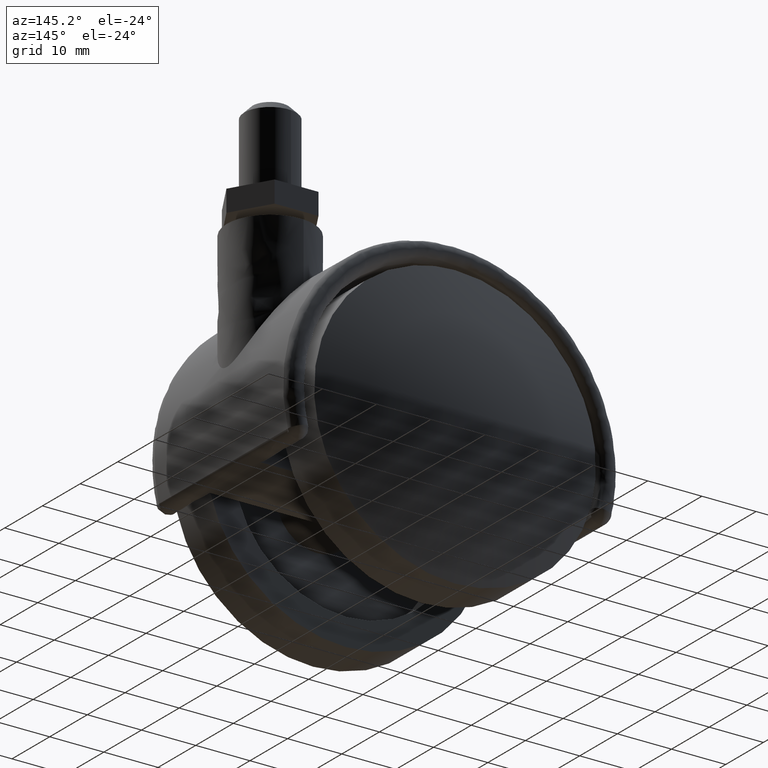
[diagram: clean part render]
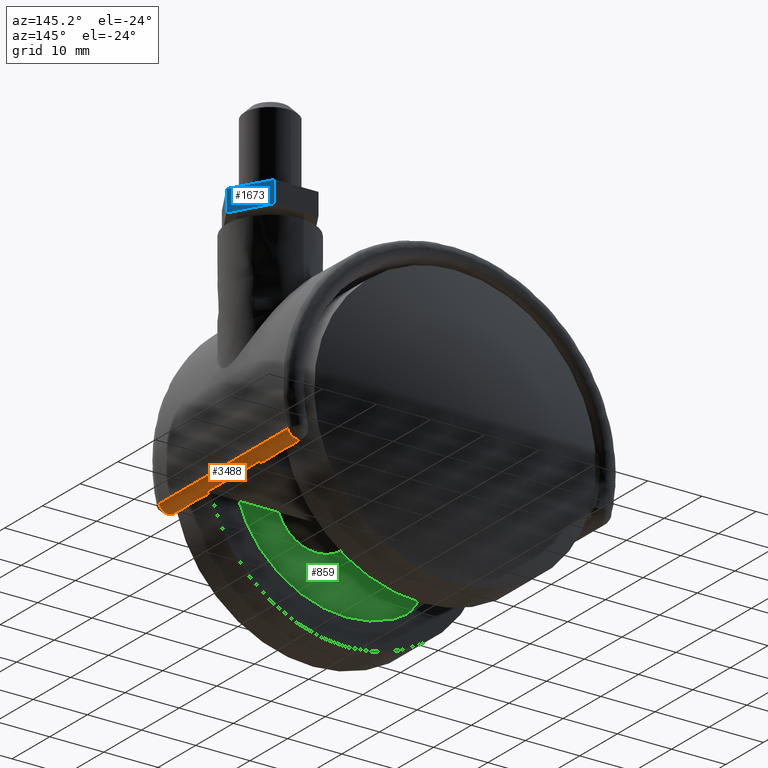
[diagram: same view with three faces highlighted in distinct colors, each labeled with its STEP entity id]
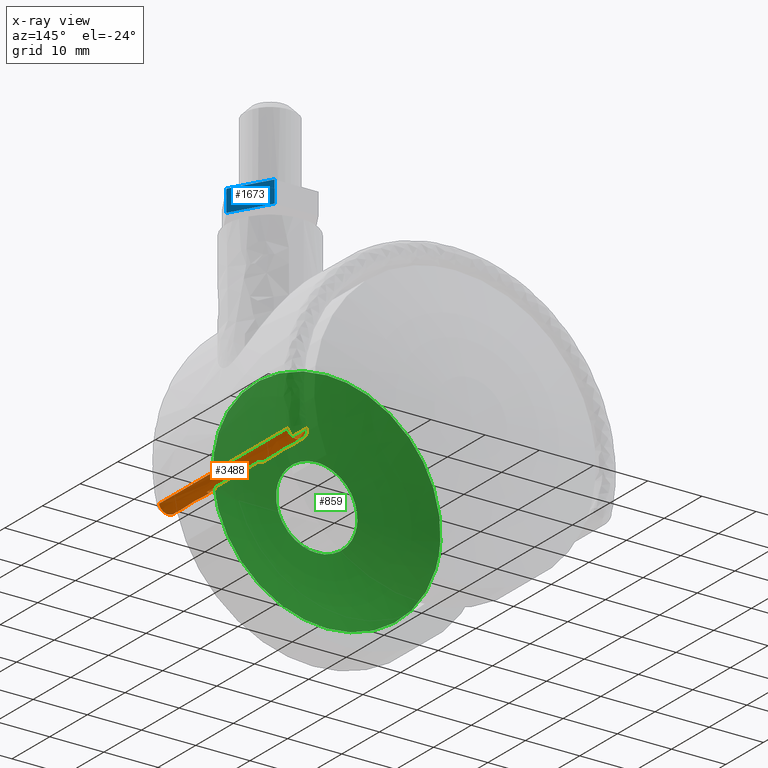
[diagram: x-ray of the same camera — body ghosted, the three highlighted faces saturated]
A machine part, auxiliary view with three faces highlighted in distinct colors.
The next image is the same camera in x-ray (body ghosted, the three faces saturated) — at least one of them is partly hidden behind the body in this view.
Their STEP definitions:

[orange] entity #3488 — the highlighted face is a freeform B-spline surface patch.
#2855=CARTESIAN_POINT('',(27.946377224964252,-6.900000000000000,-8.500000000000000));
#2856=VERTEX_POINT('',#2855);
#2881=CARTESIAN_POINT('',(27.946377224964252,6.900000000000000,-8.500000000000000));
#2882=VERTEX_POINT('',#2881);
#2888=CARTESIAN_POINT('',(27.946377224964252,6.900000000000000,-8.500000000000000));
#2889=CARTESIAN_POINT('',(27.946377224964252,-6.900000000000000,-8.500000000000000));
#2890=QUASI_UNIFORM_CURVE('',1,(#2888,#2889),.UNSPECIFIED.,.F.,.U.);
#2891=EDGE_CURVE('',#2882,#2856,#2890,.T.);
#2993=CARTESIAN_POINT('',(26.245293393879450,-17.100000000000001,-6.339130434782610));
#2994=VERTEX_POINT('',#2993);
#2995=CARTESIAN_POINT('',(29.647461056049000,-17.100000000000001,-7.160869565217389));
#2996=VERTEX_POINT('',#2995);
#2997=CARTESIAN_POINT('',(26.245293393879471,-17.100000000000001,-6.339130434782614));
#2998=CARTESIAN_POINT('',(25.834423828662086,-17.100000000000001,-8.040214265867391));
#2999=CARTESIAN_POINT('',(27.535507659746859,-17.100000000000001,-8.451083831084779));
#3000=CARTESIAN_POINT('',(29.236591490831628,-17.100000000000001,-8.861953396302171));
#3001=CARTESIAN_POINT('',(29.647461056049028,-17.100000000000001,-7.160869565217397));
#3009=(BOUNDED_CURVE()B_SPLINE_CURVE(2,(#2997,#2998,#2999,#3000,#3001),.UNSPECIFIED.,.F.,.U.)B_SPLINE_CURVE_WITH_KNOTS((3,2,3),(0.0,0.500000000000000,1.0),.UNSPECIFIED.)CURVE()GEOMETRIC_REPRESENTATION_ITEM()RATIONAL_B_SPLINE_CURVE((1.0,0.707106781186549,1.0,0.707106781186549,1.0))REPRESENTATION_ITEM(''));
#3010=EDGE_CURVE('',#2994,#2996,#3009,.T.);
#3062=CARTESIAN_POINT('',(26.245293393879450,17.100000000000001,-6.339130434782610));
#3063=VERTEX_POINT('',#3062);
#3064=CARTESIAN_POINT('',(29.647461056049000,17.100000000000001,-7.160869565217389));
#3065=VERTEX_POINT('',#3064);
#3066=CARTESIAN_POINT('',(26.245293393879471,17.100000000000001,-6.339130434782614));
#3067=CARTESIAN_POINT('',(25.834423828662086,17.100000000000001,-8.040214265867391));
#3068=CARTESIAN_POINT('',(27.535507659746859,17.100000000000001,-8.451083831084779));
#3069=CARTESIAN_POINT('',(29.236591490831628,17.100000000000001,-8.861953396302171));
#3070=CARTESIAN_POINT('',(29.647461056049028,17.100000000000001,-7.160869565217397));
#3078=(BOUNDED_CURVE()B_SPLINE_CURVE(2,(#3066,#3067,#3068,#3069,#3070),.UNSPECIFIED.,.F.,.U.)B_SPLINE_CURVE_WITH_KNOTS((3,2,3),(0.0,0.500000000000000,1.0),.UNSPECIFIED.)CURVE()GEOMETRIC_REPRESENTATION_ITEM()RATIONAL_B_SPLINE_CURVE((1.0,0.707106781186549,1.0,0.707106781186549,1.0))REPRESENTATION_ITEM(''));
#3079=EDGE_CURVE('',#3063,#3065,#3078,.T.);
#3406=CARTESIAN_POINT('',(29.647461056049000,-17.100000000000001,-7.160869565217389));
#3407=CARTESIAN_POINT('',(29.647461056049000,17.100000000000001,-7.160869565217389));
#3408=QUASI_UNIFORM_CURVE('',1,(#3406,#3407),.UNSPECIFIED.,.F.,.U.);
#3409=EDGE_CURVE('',#2996,#3065,#3408,.T.);
#3420=CARTESIAN_POINT('',(29.657633448475611,17.954999999999998,-7.116199586965414));
#3421=CARTESIAN_POINT('',(29.657633448475611,-17.976375000000001,-7.116199586965414));
#3422=CARTESIAN_POINT('',(29.271739601845361,17.955000000000009,-8.919487384565041));
#3423=CARTESIAN_POINT('',(29.271739601845361,-17.976375000000004,-8.919487384565041));
#3424=CARTESIAN_POINT('',(27.491119270971510,17.954999999999998,-8.439745600771413));
#3425=CARTESIAN_POINT('',(27.491119270971510,-17.976375000000001,-8.439745600771413));
#3426=CARTESIAN_POINT('',(25.710498940097665,17.955000000000009,-7.960003816977791));
#3427=CARTESIAN_POINT('',(25.710498940097665,-17.976375000000004,-7.960003816977791));
#3428=CARTESIAN_POINT('',(26.282773722171719,17.954999999999998,-6.206931509387232));
#3429=CARTESIAN_POINT('',(26.282773722171719,-17.976375000000001,-6.206931509387232));
#3437=(BOUNDED_SURFACE()B_SPLINE_SURFACE(1,2,((#3420,#3422,#3424,#3426,#3428),(#3421,#3423,#3425,#3427,#3429)),.UNSPECIFIED.,.F.,.F.,.U.)B_SPLINE_SURFACE_WITH_KNOTS((2,2),(3,2,3),(0.0,35.931375000000003),(0.0,3.007437341767854,6.014874683535707),.UNSPECIFIED.)GEOMETRIC_REPRESENTATION_ITEM()RATIONAL_B_SPLINE_SURFACE(((1.0,0.688354575693754,1.0,0.688354575693754,1.0),(1.0,0.688354575693754,1.0,0.688354575693754,1.0)))REPRESENTATION_ITEM('')SURFACE());
#3438=ORIENTED_EDGE('',*,*,#2891,.F.);
#3439=CARTESIAN_POINT('',(26.245293393879450,6.900000000000000,-6.339130434782610));
#3440=VERTEX_POINT('',#3439);
#3441=CARTESIAN_POINT('',(26.245293393879471,6.900000000000000,-6.339130434782614));
#3442=CARTESIAN_POINT('',(26.045832798830396,6.899999999999999,-7.164937994894808));
#3443=CARTESIAN_POINT('',(26.571327818737249,6.900000000000000,-7.832468997447404));
#3444=CARTESIAN_POINT('',(27.096822838644115,6.899999999999999,-8.500000000000000));
#3445=CARTESIAN_POINT('',(27.946377224964252,6.900000000000000,-8.500000000000000));
#3453=(BOUNDED_CURVE()B_SPLINE_CURVE(2,(#3441,#3442,#3443,#3444,#3445),.UNSPECIFIED.,.F.,.U.)B_SPLINE_CURVE_WITH_KNOTS((3,2,3),(0.0,0.500000000000000,1.0),.UNSPECIFIED.)CURVE()GEOMETRIC_REPRESENTATION_ITEM()RATIONAL_B_SPLINE_CURVE((1.0,0.899598163856254,1.0,0.899598163856254,1.0))REPRESENTATION_ITEM(''));
#3454=EDGE_CURVE('',#3440,#2882,#3453,.T.);
#3455=ORIENTED_EDGE('',*,*,#3454,.F.);
#3456=CARTESIAN_POINT('',(26.245293393879450,17.100000000000001,-6.339130434782610));
#3457=CARTESIAN_POINT('',(26.245293393879450,6.900000000000000,-6.339130434782610));
#3458=QUASI_UNIFORM_CURVE('',1,(#3456,#3457),.UNSPECIFIED.,.F.,.U.);
#3459=EDGE_CURVE('',#3063,#3440,#3458,.T.);
#3460=ORIENTED_EDGE('',*,*,#3459,.F.);
#3461=ORIENTED_EDGE('',*,*,#3079,.T.);
#3462=ORIENTED_EDGE('',*,*,#3409,.F.);
#3463=ORIENTED_EDGE('',*,*,#3010,.F.);
#3464=CARTESIAN_POINT('',(26.245293393879450,-6.900000000000000,-6.339130434782610));
#3465=VERTEX_POINT('',#3464);
#3466=CARTESIAN_POINT('',(26.245293393879450,-6.900000000000000,-6.339130434782610));
#3467=CARTESIAN_POINT('',(26.245293393879450,-17.100000000000001,-6.339130434782610));
#3468=QUASI_UNIFORM_CURVE('',1,(#3466,#3467),.UNSPECIFIED.,.F.,.U.);
#3469=EDGE_CURVE('',#3465,#2994,#3468,.T.);
#3470=ORIENTED_EDGE('',*,*,#3469,.F.);
#3471=CARTESIAN_POINT('',(26.245293393879471,-6.900000000000000,-6.339130434782614));
#3472=CARTESIAN_POINT('',(26.045832798830396,-6.899999999999999,-7.164937994894808));
#3473=CARTESIAN_POINT('',(26.571327818737249,-6.900000000000000,-7.832468997447404));
#3474=CARTESIAN_POINT('',(27.096822838644115,-6.899999999999999,-8.500000000000000));
#3475=CARTESIAN_POINT('',(27.946377224964252,-6.900000000000000,-8.500000000000000));
#3483=(BOUNDED_CURVE()B_SPLINE_CURVE(2,(#3471,#3472,#3473,#3474,#3475),.UNSPECIFIED.,.F.,.U.)B_SPLINE_CURVE_WITH_KNOTS((3,2,3),(0.0,0.500000000000000,1.0),.UNSPECIFIED.)CURVE()GEOMETRIC_REPRESENTATION_ITEM()RATIONAL_B_SPLINE_CURVE((1.0,0.899598163856254,1.0,0.899598163856254,1.0))REPRESENTATION_ITEM(''));
#3484=EDGE_CURVE('',#3465,#2856,#3483,.T.);
#3485=ORIENTED_EDGE('',*,*,#3484,.T.);
#3486=EDGE_LOOP('',(#3438,#3455,#3460,#3461,#3462,#3463,#3470,#3485));
#3487=FACE_OUTER_BOUND('',#3486,.T.);
#3488=ADVANCED_FACE('',(#3487),#3437,.T.);

[blue] entity #1673 — the highlighted face is a freeform B-spline surface patch.
#1508=CARTESIAN_POINT('',(25.042215999999900,6.999999999999770,35.0));
#1509=VERTEX_POINT('',#1508);
#1515=CARTESIAN_POINT('',(29.083667999999999,0.0,35.0));
#1516=VERTEX_POINT('',#1515);
#1517=CARTESIAN_POINT('',(25.042215999999900,6.999999999999770,35.0));
#1518=CARTESIAN_POINT('',(29.083667999999999,0.0,35.0));
#1519=QUASI_UNIFORM_CURVE('',1,(#1517,#1518),.UNSPECIFIED.,.F.,.U.);
#1520=EDGE_CURVE('',#1509,#1516,#1519,.T.);
#1578=CARTESIAN_POINT('',(29.083667999999999,0.0,39.0));
#1579=VERTEX_POINT('',#1578);
#1585=CARTESIAN_POINT('',(25.042215999999900,6.999999999999770,39.0));
#1586=VERTEX_POINT('',#1585);
#1587=CARTESIAN_POINT('',(25.042215999999900,6.999999999999770,39.0));
#1588=CARTESIAN_POINT('',(29.083667999999999,0.0,39.0));
#1589=QUASI_UNIFORM_CURVE('',1,(#1587,#1588),.UNSPECIFIED.,.F.,.U.);
#1590=EDGE_CURVE('',#1586,#1579,#1589,.T.);
#1648=CARTESIAN_POINT('',(29.083667999999999,0.0,39.0));
#1649=CARTESIAN_POINT('',(29.083667999999999,0.0,35.0));
#1650=QUASI_UNIFORM_CURVE('',1,(#1648,#1649),.UNSPECIFIED.,.F.,.U.);
#1651=EDGE_CURVE('',#1579,#1516,#1650,.T.);
#1658=CARTESIAN_POINT('',(29.285538481628610,-0.349649920721650,34.800200007752778));
#1659=CARTESIAN_POINT('',(24.840345373837689,7.349650171060918,34.800200007752778));
#1660=CARTESIAN_POINT('',(29.285538481628610,-0.349649920721650,39.199800099535580));
#1661=CARTESIAN_POINT('',(24.840345373837689,7.349650171060918,39.199800099535580));
#1662=B_SPLINE_SURFACE_WITH_KNOTS('',1,1,((#1658,#1660),(#1659,#1661)),.UNSPECIFIED.,.F.,.F.,.U.,(2,2),(2,2),(0.0,8.890386024739025),(0.0,4.399600091782801),.UNSPECIFIED.);
#1663=ORIENTED_EDGE('',*,*,#1520,.F.);
#1664=CARTESIAN_POINT('',(25.042215999999900,6.999999999999770,39.0));
#1665=CARTESIAN_POINT('',(25.042215999999900,6.999999999999770,35.0));
#1666=QUASI_UNIFORM_CURVE('',1,(#1664,#1665),.UNSPECIFIED.,.F.,.U.);
#1667=EDGE_CURVE('',#1586,#1509,#1666,.T.);
#1668=ORIENTED_EDGE('',*,*,#1667,.F.);
#1669=ORIENTED_EDGE('',*,*,#1590,.T.);
#1670=ORIENTED_EDGE('',*,*,#1651,.T.);
#1671=EDGE_LOOP('',(#1663,#1668,#1669,#1670));
#1672=FACE_OUTER_BOUND('',#1671,.T.);
#1673=ADVANCED_FACE('',(#1672),#1662,.T.);

[green] entity #859 — the highlighted face is a freeform B-spline surface patch.
#256=CARTESIAN_POINT('',(7.447571447717403,-17.869045450421599,0.885256760010619));
#257=VERTEX_POINT('',#256);
#258=CARTESIAN_POINT('',(0.0,-17.869045450421599,-7.500000000000000));
#259=VERTEX_POINT('',#258);
#260=CARTESIAN_POINT('',(7.447571447717403,-17.869045450421602,0.885256760010619));
#261=CARTESIAN_POINT('',(7.500000000000000,-17.869045450421602,0.444180897475153));
#262=CARTESIAN_POINT('',(7.500000000000000,-17.869045450421599,0.0));
#263=CARTESIAN_POINT('',(7.500000000000000,-17.869045450421602,-7.500000000000000));
#264=CARTESIAN_POINT('',(0.0,-17.869045450421599,-7.500000000000000));
#272=(BOUNDED_CURVE()B_SPLINE_CURVE(2,(#260,#261,#262,#263,#264),.UNSPECIFIED.,.F.,.U.)B_SPLINE_CURVE_WITH_KNOTS((3,2,3),(0.229562473511790,0.250000000000000,0.500000000000000),.UNSPECIFIED.)CURVE()GEOMETRIC_REPRESENTATION_ITEM()RATIONAL_B_SPLINE_CURVE((0.956026754180331,0.976055948329132,1.0,0.707106781186547,1.0))REPRESENTATION_ITEM(''));
#273=EDGE_CURVE('',#257,#259,#272,.T.);
#275=CARTESIAN_POINT('',(-7.486011044637598,-17.869045450421599,-0.457863123174404));
#276=VERTEX_POINT('',#275);
#277=CARTESIAN_POINT('',(0.0,-17.869045450421599,-7.500000000000000));
#278=CARTESIAN_POINT('',(-7.055297245468959,-17.869045450421595,-7.500000000000001));
#279=CARTESIAN_POINT('',(-7.486011044637598,-17.869045450421599,-0.457863123174405));
#287=(BOUNDED_CURVE()B_SPLINE_CURVE(2,(#277,#278,#279),.UNSPECIFIED.,.F.,.U.)B_SPLINE_CURVE_WITH_KNOTS((3,3),(0.500000000000000,0.739333004806386),.UNSPECIFIED.)CURVE()GEOMETRIC_REPRESENTATION_ITEM()RATIONAL_B_SPLINE_CURVE((1.0,0.719603943415849,0.976072132896868))REPRESENTATION_ITEM(''));
#288=EDGE_CURVE('',#259,#276,#287,.T.);
#355=CARTESIAN_POINT('',(0.0,-17.869045450421599,7.500000000000000));
#356=VERTEX_POINT('',#355);
#357=CARTESIAN_POINT('',(0.0,-17.869045450421599,7.500000000000000));
#358=CARTESIAN_POINT('',(6.661308944482256,-17.869045450421599,7.499999999999998));
#359=CARTESIAN_POINT('',(7.447571447717403,-17.869045450421595,0.885256760010619));
#367=(BOUNDED_CURVE()B_SPLINE_CURVE(2,(#357,#358,#359),.UNSPECIFIED.,.F.,.U.)B_SPLINE_CURVE_WITH_KNOTS((3,3),(0.0,0.229562473511790),.UNSPECIFIED.)CURVE()GEOMETRIC_REPRESENTATION_ITEM()RATIONAL_B_SPLINE_CURVE((1.0,0.731050832857416,0.956026754180330))REPRESENTATION_ITEM(''));
#368=EDGE_CURVE('',#356,#257,#367,.T.);
#402=CARTESIAN_POINT('',(-7.486011044637598,-17.869045450421599,-0.457863123174404));
#403=CARTESIAN_POINT('',(-7.500000000000000,-17.869045450421599,-0.229144798813457));
#404=CARTESIAN_POINT('',(-7.500000000000000,-17.869045450421599,0.0));
#405=CARTESIAN_POINT('',(-7.500000000000000,-17.869045450421602,7.500000000000000));
#406=CARTESIAN_POINT('',(0.0,-17.869045450421599,7.500000000000000));
#414=(BOUNDED_CURVE()B_SPLINE_CURVE(2,(#402,#403,#404,#405,#406),.UNSPECIFIED.,.F.,.U.)B_SPLINE_CURVE_WITH_KNOTS((3,2,3),(0.739333004806385,0.750000000000000,1.0),.UNSPECIFIED.)CURVE()GEOMETRIC_REPRESENTATION_ITEM()RATIONAL_B_SPLINE_CURVE((0.976072132896866,0.987502837770698,1.0,0.707106781186547,1.0))REPRESENTATION_ITEM(''));
#415=EDGE_CURVE('',#276,#356,#414,.T.);
#442=CARTESIAN_POINT('',(20.853200299682619,-15.208513235725940,2.478716857834337));
#443=VERTEX_POINT('',#442);
#444=CARTESIAN_POINT('',(0.0,-15.208513235725951,-21.0));
#445=VERTEX_POINT('',#444);
#446=CARTESIAN_POINT('',(20.853200299682619,-15.208513235725945,2.478716857834337));
#447=CARTESIAN_POINT('',(20.999999999999996,-15.208513235725947,1.243705466769669));
#448=CARTESIAN_POINT('',(21.0,-15.208513235725951,0.0));
#449=CARTESIAN_POINT('',(21.000000000000007,-15.208513235725951,-21.000000000000007));
#450=CARTESIAN_POINT('',(0.0,-15.208513235725951,-21.0));
#458=(BOUNDED_CURVE()B_SPLINE_CURVE(2,(#446,#447,#448,#449,#450),.UNSPECIFIED.,.F.,.U.)B_SPLINE_CURVE_WITH_KNOTS((3,2,3),(0.229562490291466,0.250000000000000,0.500000000000000),.UNSPECIFIED.)CURVE()GEOMETRIC_REPRESENTATION_ITEM()RATIONAL_B_SPLINE_CURVE((0.956026787069185,0.976055967987745,1.0,0.707106781186547,1.0))REPRESENTATION_ITEM(''));
#459=EDGE_CURVE('',#443,#445,#458,.T.);
#500=CARTESIAN_POINT('',(-20.960832317673660,-15.208513235725629,-1.281993974136282));
#501=VERTEX_POINT('',#500);
#507=CARTESIAN_POINT('',(0.0,-15.208513235725951,-21.0));
#508=CARTESIAN_POINT('',(-19.754851346894032,-15.208513235725952,-21.0));
#509=CARTESIAN_POINT('',(-20.960832317673660,-15.208513235725635,-1.281993974136283));
#517=(BOUNDED_CURVE()B_SPLINE_CURVE(2,(#507,#508,#509),.UNSPECIFIED.,.F.,.U.)B_SPLINE_CURVE_WITH_KNOTS((3,3),(0.500000000000000,0.739333170970031),.UNSPECIFIED.)CURVE()GEOMETRIC_REPRESENTATION_ITEM()RATIONAL_B_SPLINE_CURVE((1.0,0.719603748743029,0.976072489017581))REPRESENTATION_ITEM(''));
#518=EDGE_CURVE('',#445,#501,#517,.T.);
#541=CARTESIAN_POINT('',(0.0,-15.208513235725951,21.0));
#542=VERTEX_POINT('',#541);
#543=CARTESIAN_POINT('',(0.0,-15.208513235725951,21.0));
#544=CARTESIAN_POINT('',(18.651666909438180,-15.208513235725952,21.000000000000007));
#545=CARTESIAN_POINT('',(20.853200299682619,-15.208513235725945,2.478716857834337));
#553=(BOUNDED_CURVE()B_SPLINE_CURVE(2,(#543,#544,#545),.UNSPECIFIED.,.F.,.U.)B_SPLINE_CURVE_WITH_KNOTS((3,3),(0.0,0.229562490291466),.UNSPECIFIED.)CURVE()GEOMETRIC_REPRESENTATION_ITEM()RATIONAL_B_SPLINE_CURVE((1.0,0.731050813198803,0.956026787069185))REPRESENTATION_ITEM(''));
#554=EDGE_CURVE('',#542,#443,#553,.T.);
#556=CARTESIAN_POINT('',(-20.960832317673660,-15.208513235725635,-1.281993974136283));
#557=CARTESIAN_POINT('',(-21.000000000000004,-15.208513235725947,-0.641595315675670));
#558=CARTESIAN_POINT('',(-21.0,-15.208513235725951,0.0));
#559=CARTESIAN_POINT('',(-21.000000000000007,-15.208513235725951,21.000000000000007));
#560=CARTESIAN_POINT('',(0.0,-15.208513235725951,21.0));
#568=(BOUNDED_CURVE()B_SPLINE_CURVE(2,(#556,#557,#558,#559,#560),.UNSPECIFIED.,.F.,.U.)B_SPLINE_CURVE_WITH_KNOTS((3,2,3),(0.739333170970031,0.750000000000000,1.0),.UNSPECIFIED.)CURVE()GEOMETRIC_REPRESENTATION_ITEM()RATIONAL_B_SPLINE_CURVE((0.976072489017581,0.987503032443518,1.0,0.707106781186547,1.0))REPRESENTATION_ITEM(''));
#569=EDGE_CURVE('',#501,#542,#568,.T.);
#823=CARTESIAN_POINT('',(-22.442854141167821,-11.099639735377410,-22.443350484033637));
#824=CARTESIAN_POINT('',(-11.499132907125174,-14.586260935888866,-22.998774440519199));
#825=CARTESIAN_POINT('',(11.499197716908311,-14.586260935888866,-22.998774440519199));
#826=CARTESIAN_POINT('',(22.442974520882423,-11.099601382819028,-22.443344374413915));
#827=CARTESIAN_POINT('',(-22.998290989337121,-14.586418973602942,-11.499399808081355));
#828=CARTESIAN_POINT('',(-11.790946001567059,-18.249999999999972,-11.791206768397030));
#829=CARTESIAN_POINT('',(11.791012456025809,-18.249999999999972,-11.791206768397030));
#830=CARTESIAN_POINT('',(22.998414193375826,-14.586378699183173,-11.499396600193803));
#831=CARTESIAN_POINT('',(-22.998290989337121,-14.586418973602942,11.499399697971223));
#832=CARTESIAN_POINT('',(-11.790946001567059,-18.249999999999972,11.791206655492759));
#833=CARTESIAN_POINT('',(11.791012456025809,-18.249999999999972,11.791206655492759));
#834=CARTESIAN_POINT('',(22.998414193375826,-14.586378699183173,11.499396490083699));
#835=CARTESIAN_POINT('',(-22.442854151547873,-11.099639800538615,22.443350279512263));
#836=CARTESIAN_POINT('',(-11.499132912575252,-14.586261004315149,22.998774231199587));
#837=CARTESIAN_POINT('',(11.499197722358419,-14.586261004315149,22.998774231199587));
#838=CARTESIAN_POINT('',(22.442974531262500,-11.099601447980174,22.443344169892562));
#846=(BOUNDED_SURFACE()B_SPLINE_SURFACE(2,2,((#823,#827,#831,#835),(#824,#828,#832,#836),(#825,#829,#833,#837),(#826,#830,#834,#838)),.UNSPECIFIED.,.F.,.F.,.U.)B_SPLINE_SURFACE_WITH_KNOTS((3,1,3),(3,1,3),(15.586123570346830,38.348289241479321,61.110583201503751),(15.585620165634150,38.348289241479307,61.110958099365227),.UNSPECIFIED.)GEOMETRIC_REPRESENTATION_ITEM()RATIONAL_B_SPLINE_SURFACE(((1.050752807766859,1.025375842668815,1.025375842668815,1.050752807280875),(1.025376965098044,1.0,1.0,1.025376964612061),(1.025376965098044,1.0,1.0,1.025376964612061),(1.050753093807120,1.025376128709076,1.025376128709076,1.050753093321137)))REPRESENTATION_ITEM('')SURFACE());
#847=ORIENTED_EDGE('',*,*,#554,.T.);
#848=ORIENTED_EDGE('',*,*,#459,.T.);
#849=ORIENTED_EDGE('',*,*,#518,.T.);
#850=ORIENTED_EDGE('',*,*,#569,.T.);
#851=EDGE_LOOP('',(#847,#848,#849,#850));
#852=FACE_OUTER_BOUND('',#851,.T.);
#853=ORIENTED_EDGE('',*,*,#288,.F.);
#854=ORIENTED_EDGE('',*,*,#273,.F.);
#855=ORIENTED_EDGE('',*,*,#368,.F.);
#856=ORIENTED_EDGE('',*,*,#415,.F.);
#857=EDGE_LOOP('',(#853,#854,#855,#856));
#858=FACE_BOUND('',#857,.T.);
#859=ADVANCED_FACE('',(#852,#858),#846,.F.);